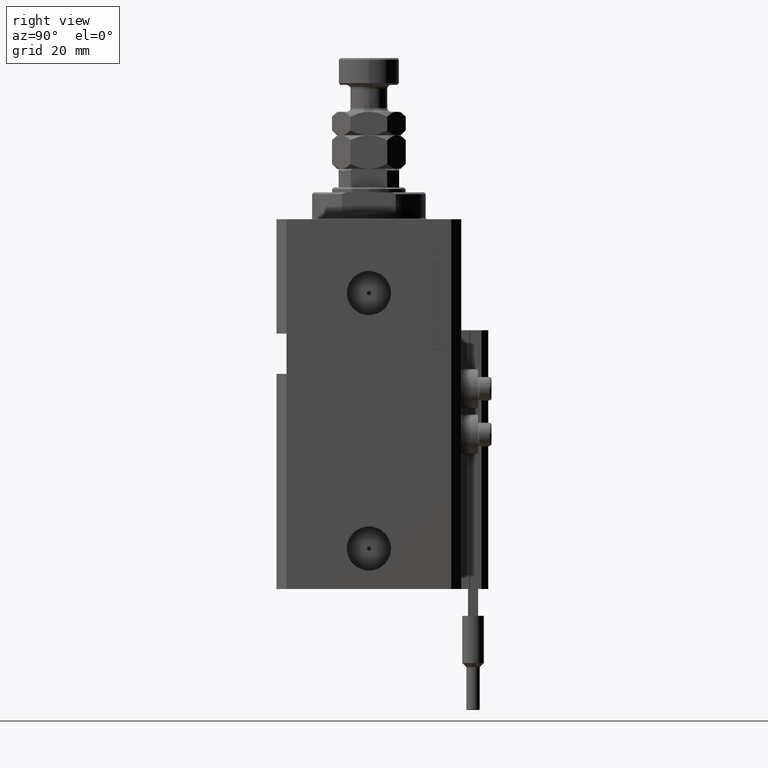
[diagram: clean part render]
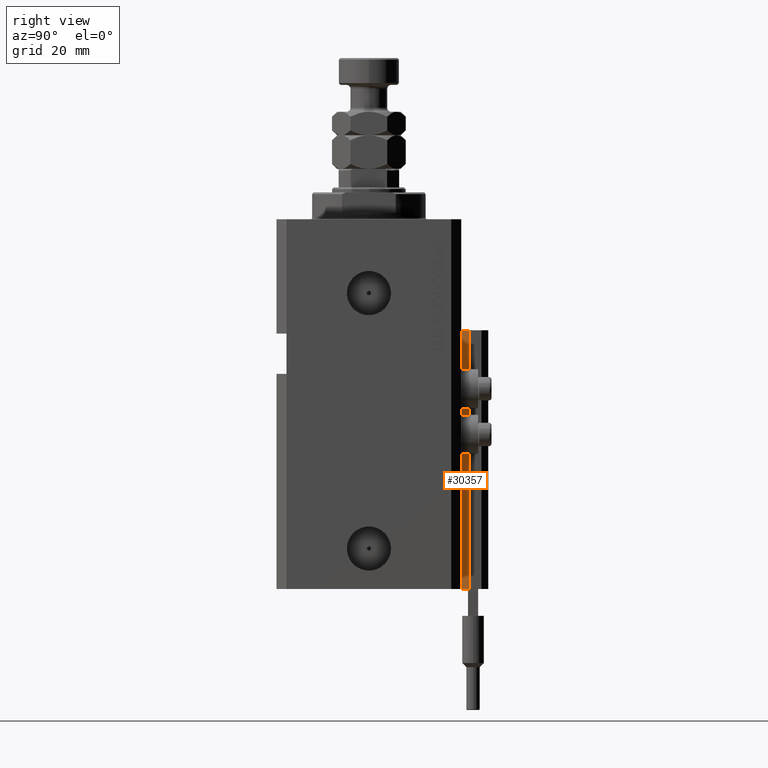
[diagram: same view with one face highlighted and labeled with its STEP entity id]
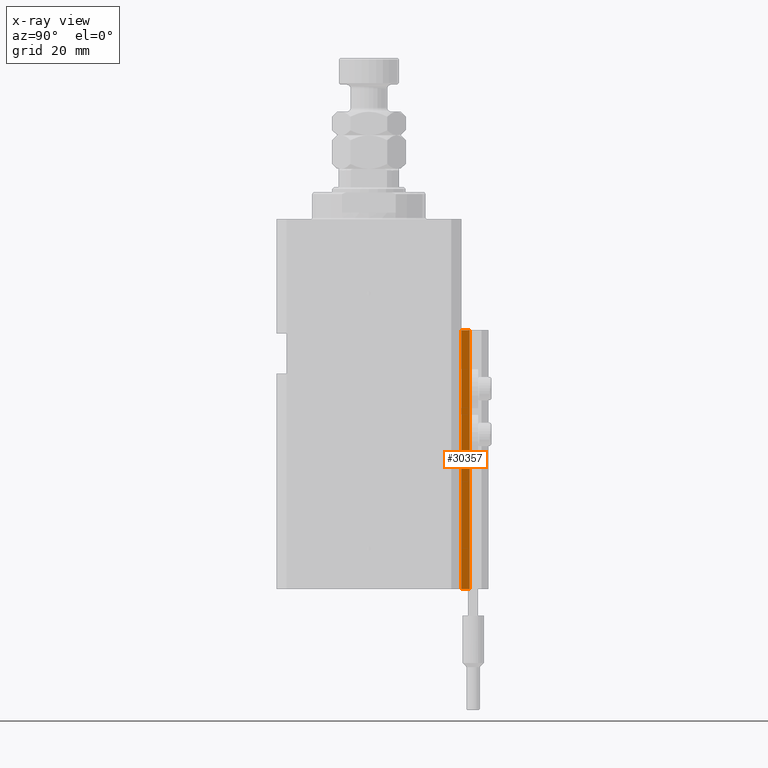
[diagram: x-ray of the same camera — body ghosted, the highlighted face saturated]
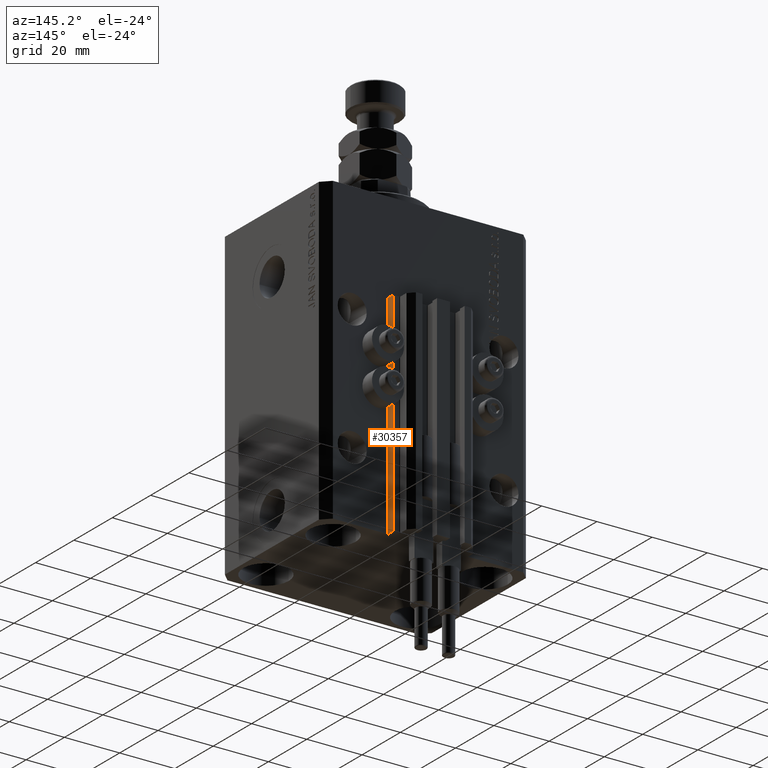
[diagram: same view with one face highlighted and labeled with its STEP entity id]
A machine part, right view. The second image highlights one B-rep face of the part: STEP entity #30357.
The next image is the same camera in x-ray: the body ghosted, the highlighted face saturated — about 0% of this face is hidden behind the body in this view.
A second angle (auxiliary view) of the same face is appended — the face is thin or edge-on in the first view.
In plain terms, the highlighted planar face has unit normal (1, 0, 0).
Its self-contained STEP definition (entity closure, byte-faithful):
#570 = EDGE_CURVE ( 'NONE', #47349, #5481, #47036, .T. ) ;
#3893 = CARTESIAN_POINT ( 'NONE',  ( 14.49999999999999645, 27.50000000000000355, -110.0000000000000000 ) ) ;
#4021 = CARTESIAN_POINT ( 'NONE',  ( 14.49999999999999645, 27.50000000000000355, -33.00000000000000000 ) ) ;
#5214 = ORIENTED_EDGE ( 'NONE', *, *, #7769, .T. ) ;
#5481 = VERTEX_POINT ( 'NONE', #29483 ) ;
#6059 = ORIENTED_EDGE ( 'NONE', *, *, #32986, .T. ) ;
#7468 = DIRECTION ( 'NONE',  ( 0.000000000000000000, 0.000000000000000000, 1.000000000000000000 ) ) ;
#7769 = EDGE_CURVE ( 'NONE', #30839, #48754, #21942, .T. ) ;
#8703 = VECTOR ( 'NONE', #38896, 1000.000000000000000 ) ;
#9441 = CARTESIAN_POINT ( 'NONE',  ( 14.49999999999999645, 27.50000000000000355, -33.00000000000000000 ) ) ;
#11834 = CARTESIAN_POINT ( 'NONE',  ( 14.49999999999999645, 30.00000000000002487, -110.0000000000000000 ) ) ;
#12666 = VECTOR ( 'NONE', #33139, 1000.000000000000000 ) ;
#13020 = FACE_OUTER_BOUND ( 'NONE', #35105, .T. ) ;
#13547 = AXIS2_PLACEMENT_3D ( 'NONE', #21667, #44082, #40521 ) ;
#13795 = CARTESIAN_POINT ( 'NONE',  ( 14.49999999999999645, 27.50000000000000355, -110.0000000000000000 ) ) ;
#14379 = CARTESIAN_POINT ( 'NONE',  ( 14.49999999999999645, 30.00000000000002487, -110.0000000000000000 ) ) ;
#16497 = ORIENTED_EDGE ( 'NONE', *, *, #34195, .F. ) ;
#19553 = CARTESIAN_POINT ( 'NONE',  ( 14.49999999999999645, 27.50000000000000355, -110.0000000000000000 ) ) ;
#21667 = CARTESIAN_POINT ( 'NONE',  ( 14.49999999999999645, 27.50000000000000355, -110.0000000000000000 ) ) ;
#21942 = LINE ( 'NONE', #13795, #12666 ) ;
#24357 = ORIENTED_EDGE ( 'NONE', *, *, #570, .F. ) ;
#29312 = PLANE ( 'NONE',  #13547 ) ;
#29483 = CARTESIAN_POINT ( 'NONE',  ( 14.49999999999999645, 30.00000000000002487, -33.00000000000000000 ) ) ;
#30357 = ADVANCED_FACE ( 'NONE', ( #13020 ), #29312, .T. ) ;
#30839 = VERTEX_POINT ( 'NONE', #19553 ) ;
#32972 = VECTOR ( 'NONE', #45956, 1000.000000000000000 ) ;
#32986 = EDGE_CURVE ( 'NONE', #48754, #5481, #42644, .T. ) ;
#33139 = DIRECTION ( 'NONE',  ( 0.000000000000000000, 1.000000000000000000, 0.000000000000000000 ) ) ;
#34195 = EDGE_CURVE ( 'NONE', #30839, #47349, #38264, .T. ) ;
#35105 = EDGE_LOOP ( 'NONE', ( #24357, #16497, #5214, #6059 ) ) ;
#35421 = VECTOR ( 'NONE', #7468, 1000.000000000000000 ) ;
#38264 = LINE ( 'NONE', #3893, #35421 ) ;
#38896 = DIRECTION ( 'NONE',  ( 0.000000000000000000, 1.000000000000000000, 0.000000000000000000 ) ) ;
#40521 = DIRECTION ( 'NONE',  ( 0.000000000000000000, 0.000000000000000000, -1.000000000000000000 ) ) ;
#42644 = LINE ( 'NONE', #11834, #32972 ) ;
#44082 = DIRECTION ( 'NONE',  ( 1.000000000000000000, 0.000000000000000000, 0.000000000000000000 ) ) ;
#45956 = DIRECTION ( 'NONE',  ( 0.000000000000000000, 0.000000000000000000, 1.000000000000000000 ) ) ;
#47036 = LINE ( 'NONE', #4021, #8703 ) ;
#47349 = VERTEX_POINT ( 'NONE', #9441 ) ;
#48754 = VERTEX_POINT ( 'NONE', #14379 ) ;